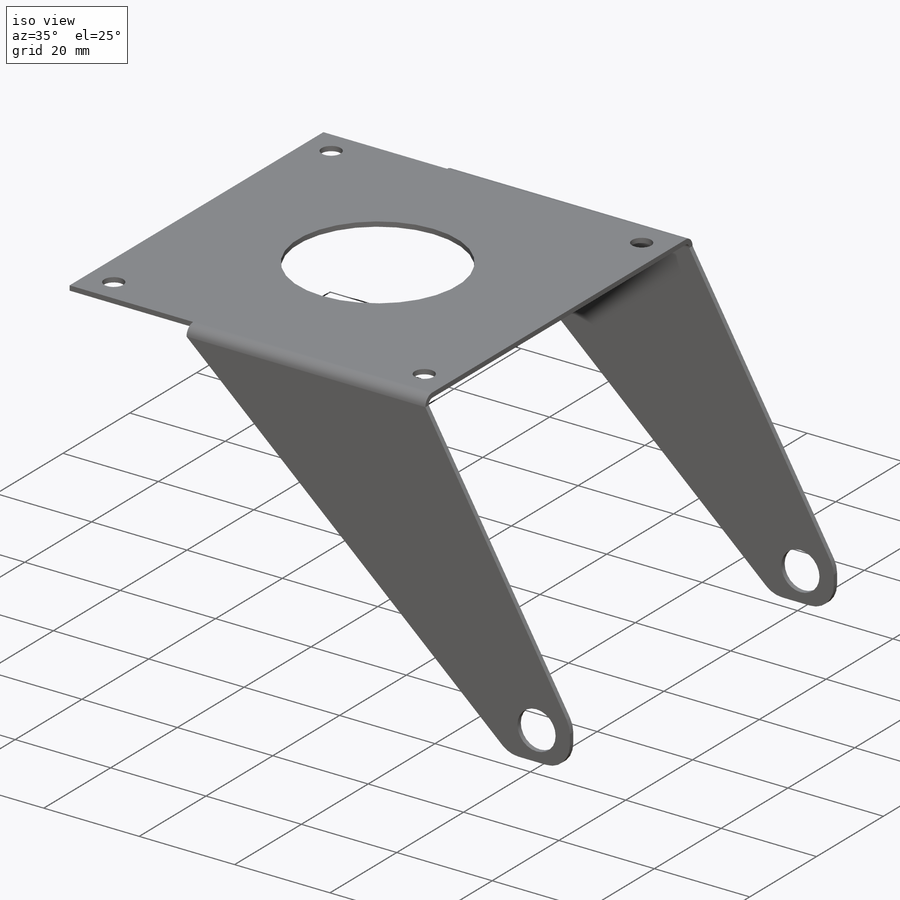
[diagram: iso view]
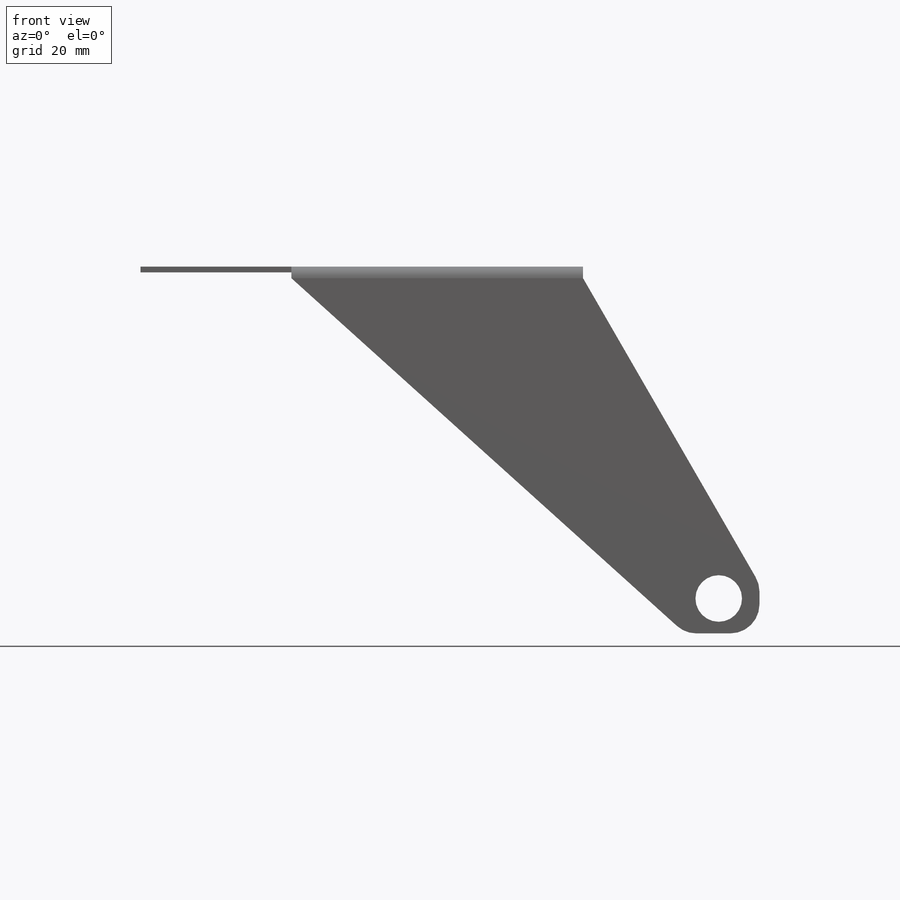
[diagram: front view]
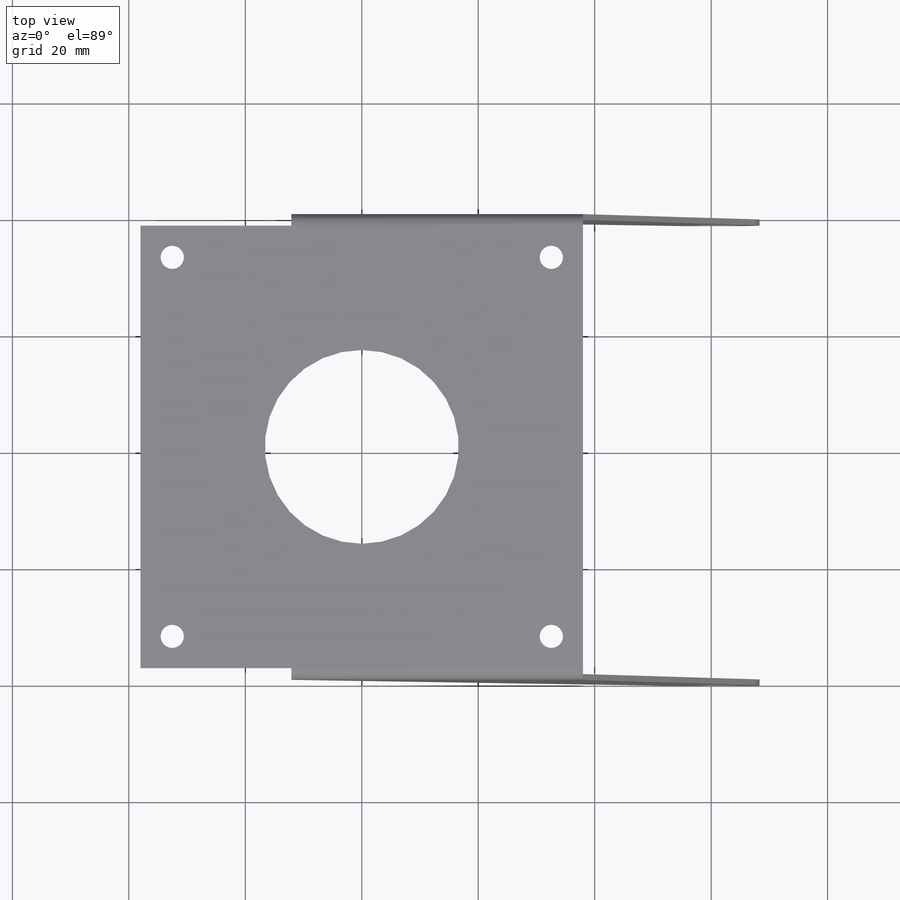
[diagram: top view]
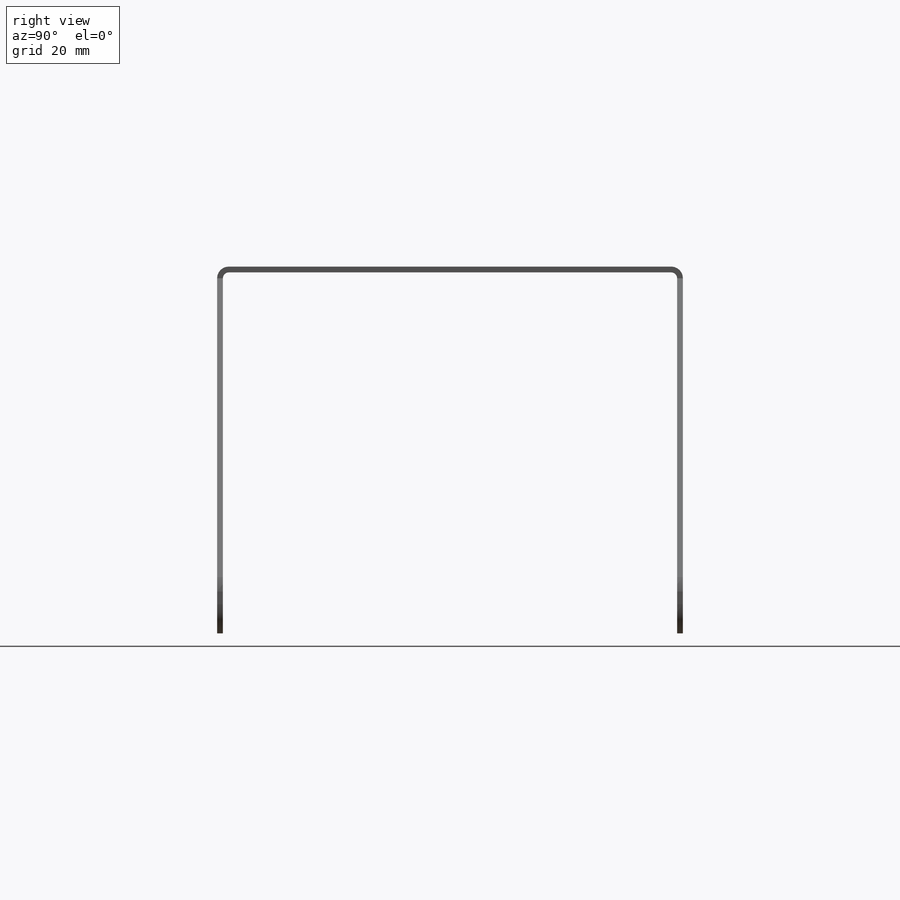
[diagram: right view]
SOLIDWORKS PART (.sldprt)
format: sldprt  version: not decoded by parser v0  size: 471,552 bytes
history: native  units: mm
features: sketch x28, sheet_metal_op x11, fillet x7, cut_extrude x5, mirror x2, material x1, pattern_circular x1 + 9 further entries (+12 scaffold rows collapsed; 9 parser-record rows omitted)
feature tree (85):
  scaffold x12  (default folders/planes/origin — collapsed)
  material  "Material <not specified>"
  sketch  "Sketch2"  dims[c1.D1=76.0mm c1.D2=76.0mm c2.D1=0.6mm c2.D2=0.5 c2.D3=0.0mm c2.D6=500.0mm]
  sheet_metal_op  "Base-Flange1"
  sketch  "Sketch7"  dims[D1=4.0mm D3=33.3mm D2=5.45mm]
  cut_extrude  "Cut-Extrude2"  Depth=10mm
  pattern_circular  "CirPattern1"  Count=4 Angle=360deg
  sketch  "Sketch10"  dims[c1.D1=62.0mm c2.D1=1.0mm c2.D4=90.0deg c2.D5=1.0 c2.D8=0.5mm c2.D9=0.5mm c3.D1=1.0mm c3.D2=500.0mm c3.D3=0.0mm c3.D6=10.0mm c3.D7=62.0mm]
  sketch  "Sketch14"  dims[D1=30.3mm]
  sheet_metal_op  "Tab1"
  sketch  "Sketch19"  dims[c1.D2=8.0mm c1.D3=8.0mm c1.D1=55.0mm c2.D3=7.0mm]
  fillet  "Fillet1"  Radius=5mm
  sketch  "Sketch20"
  cut_extrude  "Cut-Extrude4"  Depth=10mm
  sketch  "Sketch21"
  cut_extrude  "Cut-Extrude5"  Depth=10mm
  fillet  "Fillet2"  Radius=5mm
  cut_extrude  "Cut-Extrude6"  Depth=10mm
  mirror  "Mirror1"
  sketch  "Bend-Lines1"
  sketch  "Bounding-Box1"
  sketch  "Sketch22"  dims[c1.D3=~1.559837mm c1.D1=1.5mm c1.D2=12.0mm c2.D3=~2.181229mm c2.D4=12.0mm c2.D5=1.5mm c2.D6=12.0mm]
  cut_extrude  "Cut-Extrude7"  Depth=10mm
  mirror  "Mirror2"
  fillet  "Fillet3"  Radius=5mm
  fillet  "Fillet4"  Radius=10mm
  fillet  "Fillet5"  Radius=3mm
  fillet  "Fillet6"  Radius=3mm
  fillet  "Fillet7"  Radius=3mm
  sheet_metal_op  "Sheet-Metal(1)"
  "Flat-Pattern(1)"
  sketch  "Bend-Lines2"
  sketch  "Bounding-Box2"
  parser-record x9  (decoder bookkeeping rows leaked as tree rows — omitted from the tree; the rows remain in map.json)
  sheet_metal_op  "Sheet-Metal(3)"
  "Flat-Pattern(1)"
  sketch  "Bend-Lines2"
  sketch  "Bounding-Box2"
  sheet_metal_op  "Sheet-Metal(4)"
  "Flat-Pattern(1)"
  sketch  "Bend-Lines2"
  sketch  "Bounding-Box2"
  sheet_metal_op  "Sheet-Metal(5)"
  "Flat-Pattern(1)"
  sketch  "Bend-Lines2"
  sketch  "Bounding-Box2"
  sheet_metal_op  "Sheet-Metal(6)"
  "Flat-Pattern(6)"
  sketch  "Bend-Lines3"
  sketch  "Bounding-Box3"
  sheet_metal_op  "Sheet-Metal(8)"
  "Flat-Pattern(6)"
  sketch  "Bend-Lines3"
  sketch  "Bounding-Box3"
  sheet_metal_op  "Sheet-Metal(9)"
  "Flat-Pattern(6)"
  sketch  "Bend-Lines3"
  sketch  "Bounding-Box3"
  sheet_metal_op  "Sheet-Metal(10)"
  "Flat-Pattern(6)"
  sketch  "Bend-Lines3"
  sketch  "Bounding-Box3"
  sheet_metal_op  "Sheet-Metal(11)"
  "Flat-Pattern(6)"
  sketch  "Bend-Lines3"
  sketch  "Bounding-Box3"
decode coverage: 19 of 54 modeling features carry decoded parameters; 9 rows unclassified (native names shown)
note: ~ marks probable driven/reference dimensions
note: suppression state not decoded; provenance and decode notes live in map.json
